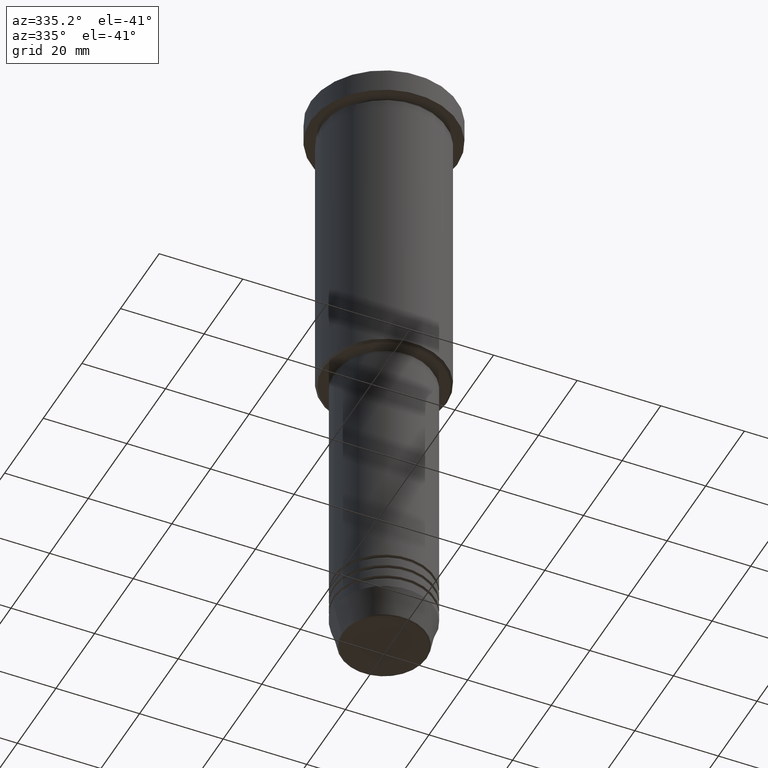
[diagram: clean part render]
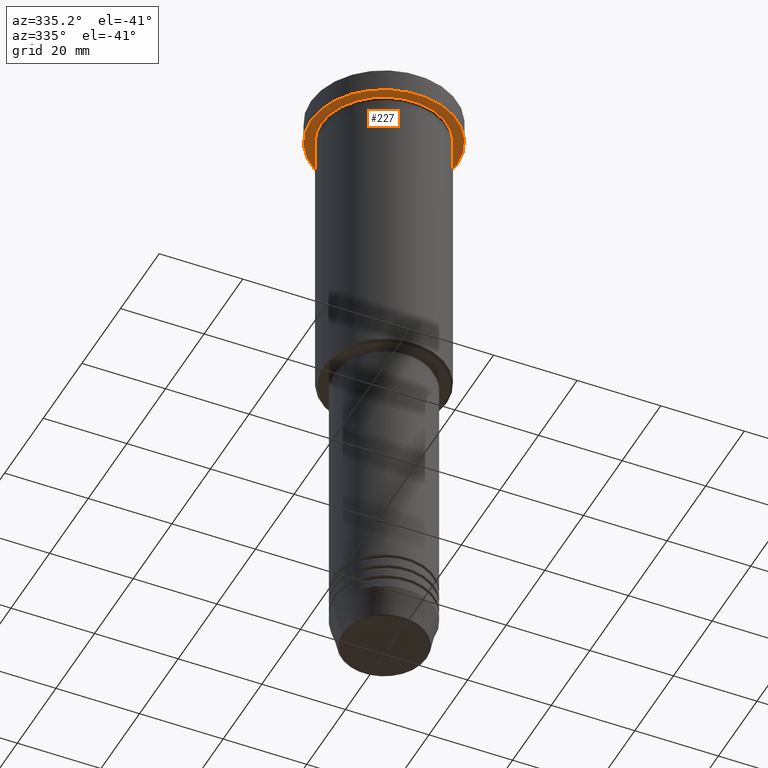
[diagram: same view with one face highlighted and labeled with its STEP entity id]
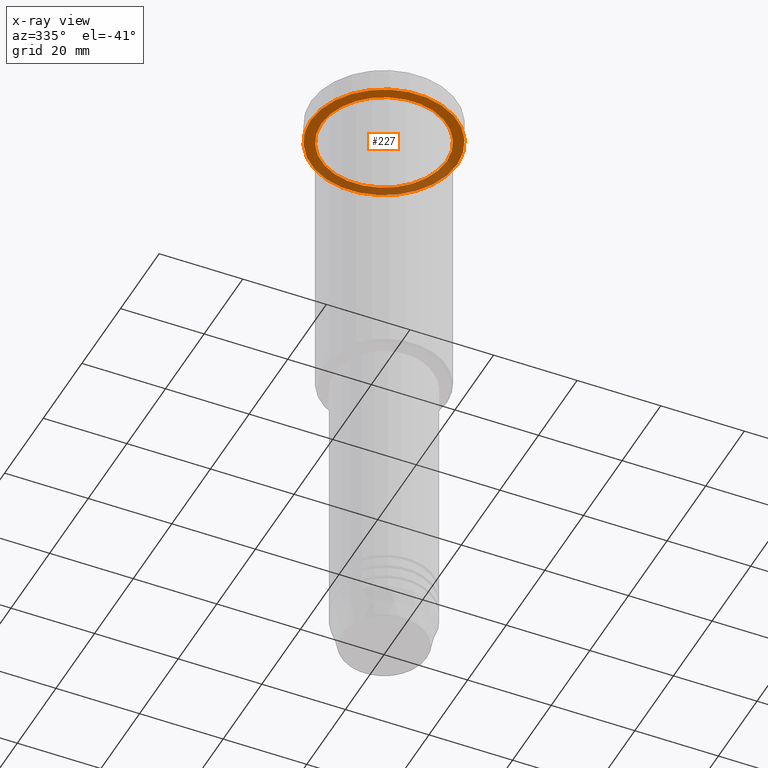
[diagram: x-ray of the same camera — body ghosted, the highlighted face saturated]
A machine part, auxiliary view. The second image highlights one B-rep face of the part: STEP entity #227.
The next image is the same camera in x-ray: the body ghosted, the highlighted face saturated — about 35% of this face is hidden behind the body in this view.
In plain terms, the highlighted planar face has unit normal (0, 0, -1).
Its self-contained STEP definition (entity closure, byte-faithful):
#19 = AXIS2_PLACEMENT_3D ( 'NONE', #1071, #623, #631 ) ;
#34 = EDGE_CURVE ( 'NONE', #465, #870, #349, .T. ) ;
#56 = CARTESIAN_POINT ( 'NONE',  ( 15.00000000000000000, 1.836970198721029589E-15, -5.999999999999994671 ) ) ;
#88 = VERTEX_POINT ( 'NONE', #56 ) ;
#131 = CARTESIAN_POINT ( 'NONE',  ( 17.50000000000000000, 0.000000000000000000, -5.999999999999995559 ) ) ;
#163 = DIRECTION ( 'NONE',  ( -0.000000000000000000, -0.000000000000000000, 1.000000000000000000 ) ) ;
#186 = CARTESIAN_POINT ( 'NONE',  ( -17.50000000000000000, 2.143131898507868248E-15, -5.999999999999995559 ) ) ;
#222 = AXIS2_PLACEMENT_3D ( 'NONE', #324, #670, #684 ) ;
#227 = ADVANCED_FACE ( 'NONE', ( #1158, #797 ), #363, .T. ) ;
#242 = AXIS2_PLACEMENT_3D ( 'NONE', #258, #611, #709 ) ;
#258 = CARTESIAN_POINT ( 'NONE',  ( 0.000000000000000000, 0.000000000000000000, -5.999999999999995559 ) ) ;
#274 = EDGE_CURVE ( 'NONE', #870, #465, #867, .T. ) ;
#288 = DIRECTION ( 'NONE',  ( -1.000000000000000000, 0.000000000000000000, 0.000000000000000000 ) ) ;
#305 = EDGE_LOOP ( 'NONE', ( #694, #689 ) ) ;
#324 = CARTESIAN_POINT ( 'NONE',  ( 0.000000000000000000, 0.000000000000000000, -5.999999999999995559 ) ) ;
#340 = AXIS2_PLACEMENT_3D ( 'NONE', #792, #163, #707 ) ;
#349 = CIRCLE ( 'NONE', #222, 17.50000000000000000 ) ;
#356 = VERTEX_POINT ( 'NONE', #642 ) ;
#363 = PLANE ( 'NONE',  #19 ) ;
#385 = ORIENTED_EDGE ( 'NONE', *, *, #1024, .T. ) ;
#444 = CARTESIAN_POINT ( 'NONE',  ( 0.000000000000000000, 0.000000000000000000, -5.999999999999995559 ) ) ;
#465 = VERTEX_POINT ( 'NONE', #131 ) ;
#585 = ORIENTED_EDGE ( 'NONE', *, *, #727, .T. ) ;
#611 = DIRECTION ( 'NONE',  ( -0.000000000000000000, -0.000000000000000000, 1.000000000000000000 ) ) ;
#623 = DIRECTION ( 'NONE',  ( 0.000000000000000000, 0.000000000000000000, -1.000000000000000000 ) ) ;
#627 = AXIS2_PLACEMENT_3D ( 'NONE', #444, #1096, #288 ) ;
#631 = DIRECTION ( 'NONE',  ( -1.000000000000000000, 0.000000000000000000, -0.000000000000000000 ) ) ;
#642 = CARTESIAN_POINT ( 'NONE',  ( -15.00000000000000000, 0.000000000000000000, -5.999999999999994671 ) ) ;
#670 = DIRECTION ( 'NONE',  ( -0.000000000000000000, -0.000000000000000000, 1.000000000000000000 ) ) ;
#684 = DIRECTION ( 'NONE',  ( 1.000000000000000000, 0.000000000000000000, 0.000000000000000000 ) ) ;
#689 = ORIENTED_EDGE ( 'NONE', *, *, #274, .F. ) ;
#694 = ORIENTED_EDGE ( 'NONE', *, *, #34, .F. ) ;
#707 = DIRECTION ( 'NONE',  ( 1.000000000000000000, 0.000000000000000000, 0.000000000000000000 ) ) ;
#709 = DIRECTION ( 'NONE',  ( -1.000000000000000000, 0.000000000000000000, 0.000000000000000000 ) ) ;
#727 = EDGE_CURVE ( 'NONE', #356, #88, #820, .T. ) ;
#792 = CARTESIAN_POINT ( 'NONE',  ( 0.000000000000000000, 0.000000000000000000, -5.999999999999995559 ) ) ;
#797 = FACE_OUTER_BOUND ( 'NONE', #305, .T. ) ;
#820 = CIRCLE ( 'NONE', #242, 15.00000000000000000 ) ;
#867 = CIRCLE ( 'NONE', #340, 17.50000000000000000 ) ;
#870 = VERTEX_POINT ( 'NONE', #186 ) ;
#938 = EDGE_LOOP ( 'NONE', ( #585, #385 ) ) ;
#977 = CIRCLE ( 'NONE', #627, 15.00000000000000000 ) ;
#1024 = EDGE_CURVE ( 'NONE', #88, #356, #977, .T. ) ;
#1071 = CARTESIAN_POINT ( 'NONE',  ( 0.000000000000000000, 17.50000000000000000, -5.999999999999995559 ) ) ;
#1096 = DIRECTION ( 'NONE',  ( -0.000000000000000000, -0.000000000000000000, 1.000000000000000000 ) ) ;
#1158 = FACE_BOUND ( 'NONE', #938, .T. ) ;